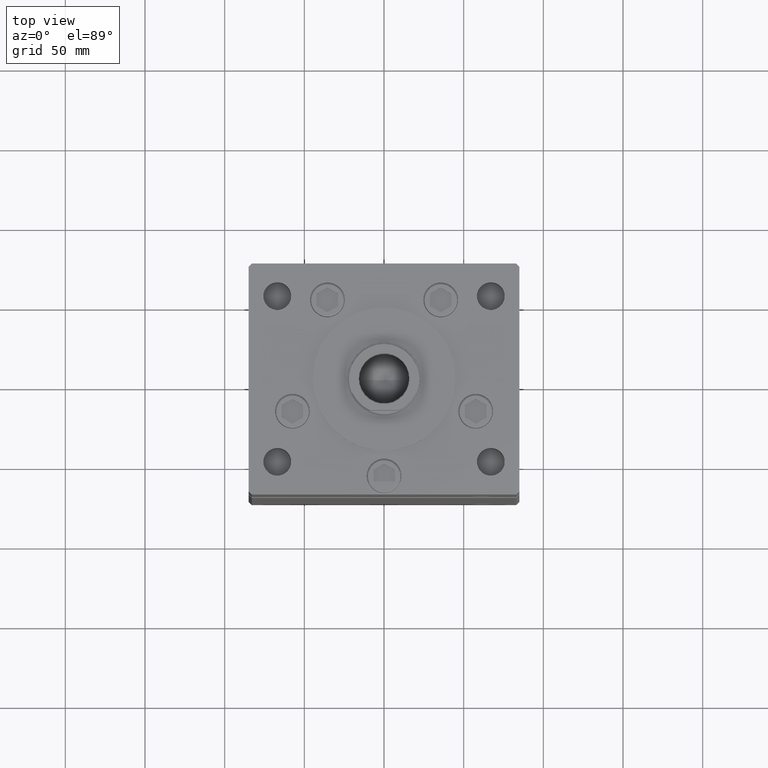
[diagram: clean part render]
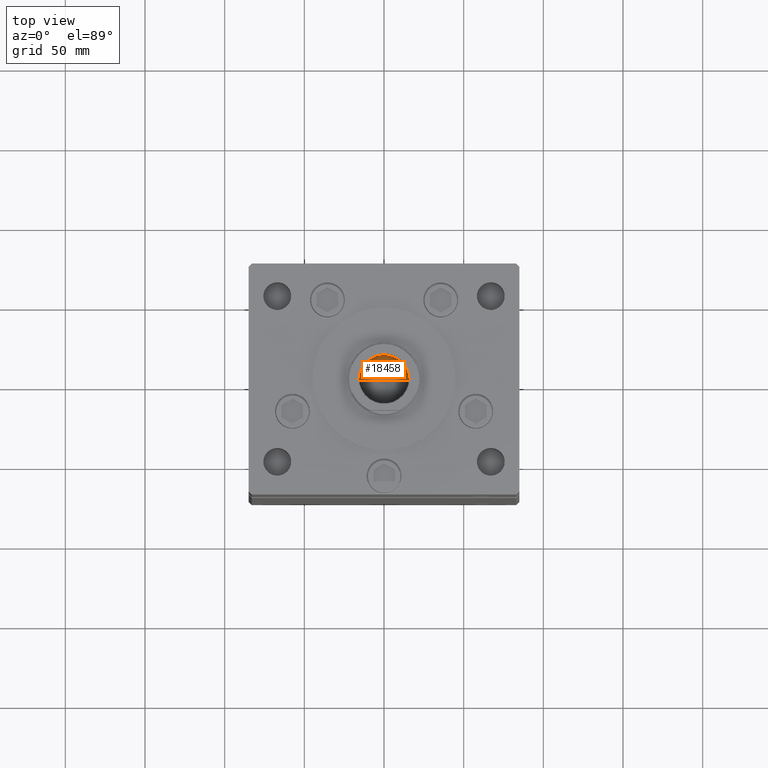
[diagram: same view with one face highlighted and labeled with its STEP entity id]
A machine part, top view. The second image highlights one B-rep face of the part: STEP entity #18458.
In plain terms, the highlighted conical surface has half-angle 59 deg.
Its self-contained STEP definition (entity closure, byte-faithful):
#1757 = EDGE_CURVE ( 'NONE', #3021, #3048, #17359, .T. ) ;
#3021 = VERTEX_POINT ( 'NONE', #12931 ) ;
#3048 = VERTEX_POINT ( 'NONE', #45469 ) ;
#7333 = AXIS2_PLACEMENT_3D ( 'NONE', #11505, #15804, #44302 ) ;
#8925 = CARTESIAN_POINT ( 'NONE',  ( 15.74999999999998934, 0.000000000000000000, 308.0000000000000000 ) ) ;
#9222 = CARTESIAN_POINT ( 'NONE',  ( 15.74999999999998934, 0.000000000000000000, 308.0000000000000000 ) ) ;
#9900 = VECTOR ( 'NONE', #33669, 1000.000000000000000 ) ;
#11505 = CARTESIAN_POINT ( 'NONE',  ( 0.000000000000000000, 0.000000000000000000, 308.0000000000000000 ) ) ;
#12931 = CARTESIAN_POINT ( 'NONE',  ( -1.480675244360640996E-14, 0.000000000000000000, 298.5364452503159214 ) ) ;
#15277 = FACE_OUTER_BOUND ( 'NONE', #33954, .T. ) ;
#15804 = DIRECTION ( 'NONE',  ( -0.000000000000000000, -0.000000000000000000, 1.000000000000000000 ) ) ;
#15899 = EDGE_CURVE ( 'NONE', #3021, #38615, #46036, .T. ) ;
#17359 = LINE ( 'NONE', #25429, #33477 ) ;
#18458 = ADVANCED_FACE ( 'NONE', ( #15277 ), #19336, .F. ) ;
#19336 = CONICAL_SURFACE ( 'NONE', #7333, 15.74999999999998934, 1.029744258676653645 ) ;
#21507 = AXIS2_PLACEMENT_3D ( 'NONE', #31362, #27594, #31619 ) ;
#25429 = CARTESIAN_POINT ( 'NONE',  ( -15.74999999999998934, 1.928818708657080161E-15, 308.0000000000000000 ) ) ;
#26733 = ORIENTED_EDGE ( 'NONE', *, *, #15899, .T. ) ;
#27594 = DIRECTION ( 'NONE',  ( -0.000000000000000000, -0.000000000000000000, 1.000000000000000000 ) ) ;
#27941 = DIRECTION ( 'NONE',  ( -0.8571673007021118895, 1.049727191138618079E-16, 0.5150380749100549327 ) ) ;
#31362 = CARTESIAN_POINT ( 'NONE',  ( 0.000000000000000000, 0.000000000000000000, 308.0000000000000000 ) ) ;
#31619 = DIRECTION ( 'NONE',  ( 1.000000000000000000, 0.000000000000000000, 0.000000000000000000 ) ) ;
#33477 = VECTOR ( 'NONE', #27941, 1000.000000000000000 ) ;
#33669 = DIRECTION ( 'NONE',  ( 0.8571673007021118895, 0.000000000000000000, 0.5150380749100549327 ) ) ;
#33954 = EDGE_LOOP ( 'NONE', ( #40852, #26733, #35907 ) ) ;
#35907 = ORIENTED_EDGE ( 'NONE', *, *, #41566, .T. ) ;
#38615 = VERTEX_POINT ( 'NONE', #8925 ) ;
#40852 = ORIENTED_EDGE ( 'NONE', *, *, #1757, .F. ) ;
#41566 = EDGE_CURVE ( 'NONE', #38615, #3048, #44673, .T. ) ;
#44302 = DIRECTION ( 'NONE',  ( 1.000000000000000000, 0.000000000000000000, 0.000000000000000000 ) ) ;
#44673 = CIRCLE ( 'NONE', #21507, 15.74999999999998934 ) ;
#45469 = CARTESIAN_POINT ( 'NONE',  ( -15.74999999999998934, 1.928818708657080161E-15, 308.0000000000000000 ) ) ;
#46036 = LINE ( 'NONE', #9222, #9900 ) ;